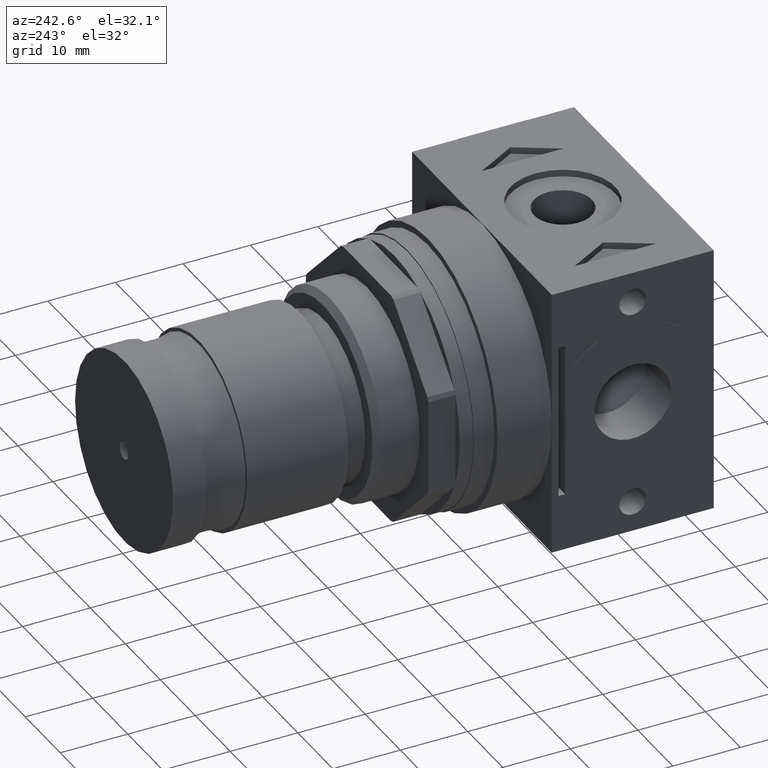
[diagram: clean part render]
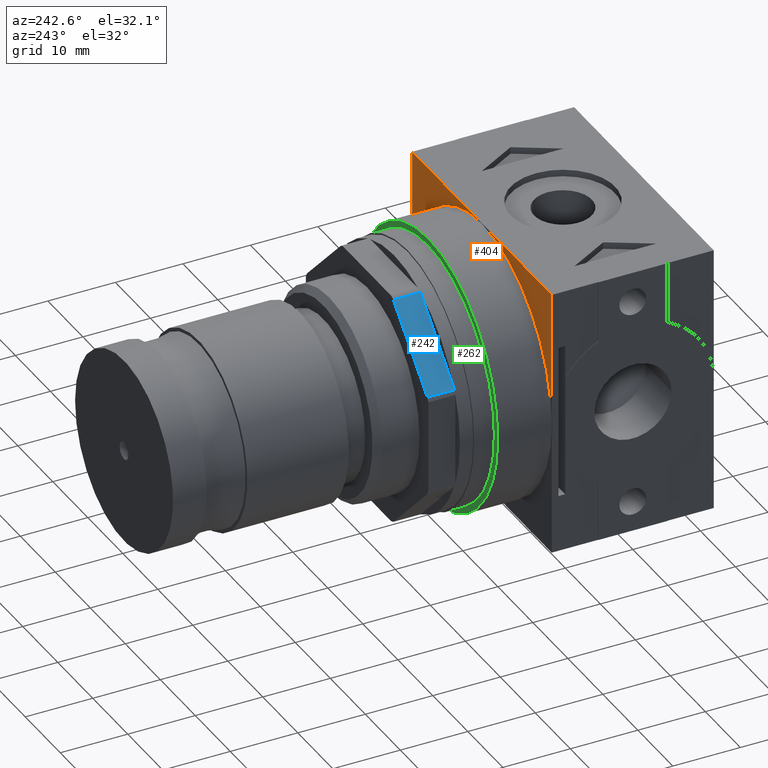
[diagram: same view with three faces highlighted in distinct colors, each labeled with its STEP entity id]
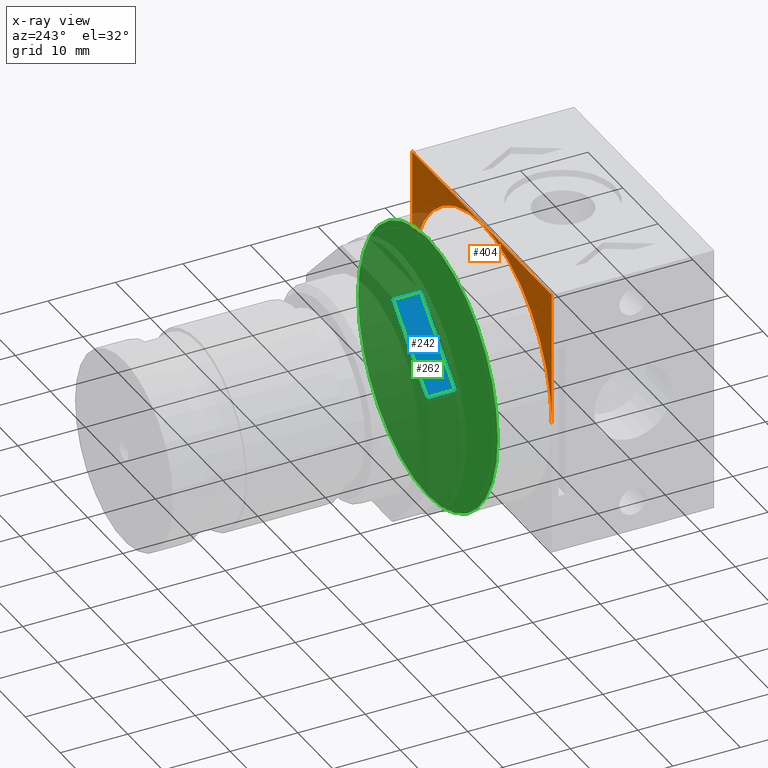
[diagram: x-ray of the same camera — body ghosted, the three highlighted faces saturated]
A machine part, auxiliary view with three faces highlighted in distinct colors.
The next image is the same camera in x-ray (body ghosted, the three faces saturated) — at least one of them is partly hidden behind the body in this view.
Their STEP definitions:

[orange] entity #404 — the highlighted planar face has unit normal (0, -1, 0).
#404 = ADVANCED_FACE( '', ( #833 ), #834, .F. );
#833 = FACE_OUTER_BOUND( '', #1278, .T. );
#834 = PLANE( '', #1279 );
#1278 = EDGE_LOOP( '', ( #2136, #2137, #2138, #2139 ) );
#1279 = AXIS2_PLACEMENT_3D( '', #2140, #2141, #2142 );
#2136 = ORIENTED_EDGE( '', *, *, #2483, .F. );
#2137 = ORIENTED_EDGE( '', *, *, #2752, .T. );
#2138 = ORIENTED_EDGE( '', *, *, #2753, .F. );
#2139 = ORIENTED_EDGE( '', *, *, #2433, .F. );
#2140 = CARTESIAN_POINT( '', ( 19.9500000000000, 12.0000000000000, -20.0000000000000 ) );
#2141 = DIRECTION( '', ( 0.000000000000000, -1.00000000000000, 0.000000000000000 ) );
#2142 = DIRECTION( '', ( 0.000000000000000, 0.000000000000000, -1.00000000000000 ) );
#2433 = EDGE_CURVE( '', #2835, #2837, #2838, .T. );
#2483 = EDGE_CURVE( '', #2919, #2835, #2921, .F. );
#2752 = EDGE_CURVE( '', #2919, #3316, #3317, .T. );
#2753 = EDGE_CURVE( '', #2837, #3316, #3318, .T. );
#2835 = VERTEX_POINT( '', #3415 );
#2837 = VERTEX_POINT( '', #3417 );
#2838 = LINE( '', #3418, #3419 );
#2919 = VERTEX_POINT( '', #3523 );
#2921 = CIRCLE( '', #3525, 19.9500000000000 );
#3316 = VERTEX_POINT( '', #4048 );
#3317 = LINE( '', #4049, #4050 );
#3318 = LINE( '', #4051, #4052 );
#3415 = CARTESIAN_POINT( '', ( 19.9500000000000, 12.0000000000000, -1.84242419865797E-015 ) );
#3417 = CARTESIAN_POINT( '', ( 19.9500000000000, 12.0000000000000, 20.0000000000000 ) );
#3418 = CARTESIAN_POINT( '', ( 19.9500000000000, 12.0000000000000, -20.0000000000000 ) );
#3419 = VECTOR( '', #4157, 1000.00000000000 );
#3523 = CARTESIAN_POINT( '', ( -19.9500000000000, 12.0000000000000, 0.000000000000000 ) );
#3525 = AXIS2_PLACEMENT_3D( '', #4223, #4224, #4225 );
#4048 = CARTESIAN_POINT( '', ( -19.9500000000000, 12.0000000000000, 20.0000000000000 ) );
#4049 = CARTESIAN_POINT( '', ( -19.9500000000000, 12.0000000000000, -20.0000000000000 ) );
#4050 = VECTOR( '', #4519, 1000.00000000000 );
#4051 = CARTESIAN_POINT( '', ( 19.9500000000000, 12.0000000000000, 20.0000000000000 ) );
#4052 = VECTOR( '', #4520, 1000.00000000000 );
#4157 = DIRECTION( '', ( 0.000000000000000, 0.000000000000000, 1.00000000000000 ) );
#4223 = CARTESIAN_POINT( '', ( 0.000000000000000, 12.0000000000000, 0.000000000000000 ) );
#4224 = DIRECTION( '', ( 0.000000000000000, -1.00000000000000, 0.000000000000000 ) );
#4225 = DIRECTION( '', ( 0.000000000000000, 0.000000000000000, -1.00000000000000 ) );
#4519 = DIRECTION( '', ( 0.000000000000000, 0.000000000000000, 1.00000000000000 ) );
#4520 = DIRECTION( '', ( -1.00000000000000, -0.000000000000000, -0.000000000000000 ) );

[blue] entity #242 — the highlighted planar face has unit normal (-0.7071, 0, 0.7071).
#242 = ADVANCED_FACE( '', ( #559 ), #560, .T. );
#559 = FACE_OUTER_BOUND( '', #1004, .T. );
#560 = PLANE( '', #1005 );
#1004 = EDGE_LOOP( '', ( #1498, #1499, #1500, #1501 ) );
#1005 = AXIS2_PLACEMENT_3D( '', #1502, #1503, #1504 );
#1498 = ORIENTED_EDGE( '', *, *, #2487, .T. );
#1499 = ORIENTED_EDGE( '', *, *, #2488, .T. );
#1500 = ORIENTED_EDGE( '', *, *, #2489, .T. );
#1501 = ORIENTED_EDGE( '', *, *, #2447, .T. );
#1502 = CARTESIAN_POINT( '', ( 5.00000000000000, -7.24873734152916, 17.5000000000000 ) );
#1503 = DIRECTION( '', ( 0.000000000000000, -0.707106781186547, 0.707106781186548 ) );
#1504 = DIRECTION( '', ( 0.000000000000000, -0.707106781186548, -0.707106781186547 ) );
#2447 = EDGE_CURVE( '', #2859, #2860, #2862, .T. );
#2487 = EDGE_CURVE( '', #2860, #2926, #2927, .T. );
#2488 = EDGE_CURVE( '', #2926, #2928, #2929, .T. );
#2489 = EDGE_CURVE( '', #2928, #2859, #2930, .F. );
#2859 = VERTEX_POINT( '', #3445 );
#2860 = VERTEX_POINT( '', #3446 );
#2862 = LINE( '', #3448, #3449 );
#2926 = VERTEX_POINT( '', #3530 );
#2927 = LINE( '', #3531, #3532 );
#2928 = VERTEX_POINT( '', #3533 );
#2929 = LINE( '', #3534, #3535 );
#2930 = LINE( '', #3536, #3537 );
#3445 = CARTESIAN_POINT( '', ( 5.00000000000000, -7.51690019428426, 17.2318371472449 ) );
#3446 = CARTESIAN_POINT( '', ( 5.00000000000000, -17.2318371472449, 7.51690019428426 ) );
#3448 = CARTESIAN_POINT( '', ( 5.00000000000000, -7.24873734152916, 17.5000000000000 ) );
#3449 = VECTOR( '', #4178, 1000.00000000000 );
#3530 = CARTESIAN_POINT( '', ( 9.00000000000000, -17.2318371472449, 7.51690019428426 ) );
#3531 = CARTESIAN_POINT( '', ( 9.00000000000000, -17.2318371472449, 7.51690019428426 ) );
#3532 = VECTOR( '', #4229, 1000.00000000000 );
#3533 = CARTESIAN_POINT( '', ( 9.00000000000000, -7.51690019428426, 17.2318371472449 ) );
#3534 = CARTESIAN_POINT( '', ( 9.00000000000000, -2.97436867076458, 21.7743686707646 ) );
#3535 = VECTOR( '', #4230, 1000.00000000000 );
#3536 = CARTESIAN_POINT( '', ( 9.00000000000000, -7.51690019428426, 17.2318371472449 ) );
#3537 = VECTOR( '', #4231, 1000.00000000000 );
#4178 = DIRECTION( '', ( 0.000000000000000, -0.707106781186548, -0.707106781186547 ) );
#4229 = DIRECTION( '', ( 1.00000000000000, -0.000000000000000, -0.000000000000000 ) );
#4230 = DIRECTION( '', ( 0.000000000000000, 0.707106781186548, 0.707106781186547 ) );
#4231 = DIRECTION( '', ( 1.00000000000000, -0.000000000000000, -0.000000000000000 ) );

[green] entity #262 — the highlighted planar face has unit normal (0, 1, 0).
#262 = ADVANCED_FACE( '', ( #593 ), #594, .T. );
#593 = FACE_OUTER_BOUND( '', #1038, .T. );
#594 = PLANE( '', #1039 );
#1038 = EDGE_LOOP( '', ( #1590 ) );
#1039 = AXIS2_PLACEMENT_3D( '', #1591, #1592, #1593 );
#1590 = ORIENTED_EDGE( '', *, *, #2481, .T. );
#1591 = CARTESIAN_POINT( '', ( 0.000000000000000, 20.0000000000000, 0.000000000000000 ) );
#1592 = DIRECTION( '', ( 0.000000000000000, 1.00000000000000, 0.000000000000000 ) );
#1593 = DIRECTION( '', ( 0.000000000000000, -0.000000000000000, 1.00000000000000 ) );
#2481 = EDGE_CURVE( '', #2917, #2917, #2918, .T. );
#2917 = VERTEX_POINT( '', #3521 );
#2918 = CIRCLE( '', #3522, 19.9500000000000 );
#3521 = CARTESIAN_POINT( '', ( 19.9500000000000, 20.0000000000000, 0.000000000000000 ) );
#3522 = AXIS2_PLACEMENT_3D( '', #4217, #4218, #4219 );
#4217 = CARTESIAN_POINT( '', ( 0.000000000000000, 20.0000000000000, 0.000000000000000 ) );
#4218 = DIRECTION( '', ( -0.000000000000000, 1.00000000000000, 0.000000000000000 ) );
#4219 = DIRECTION( '', ( 1.00000000000000, 0.000000000000000, 0.000000000000000 ) );